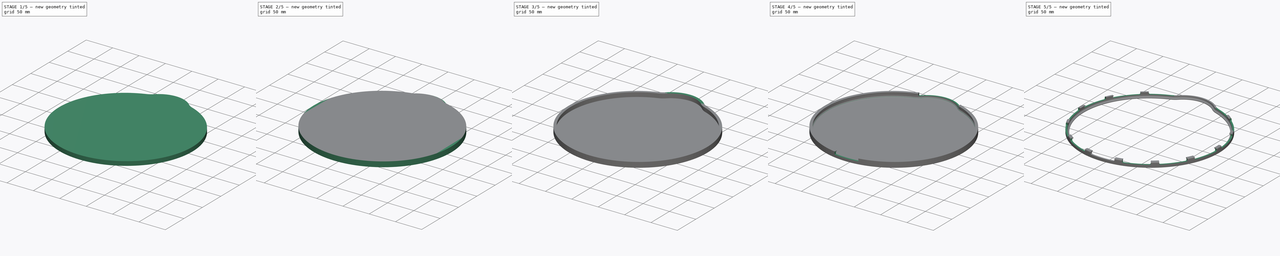
[diagram: build sequence overview — one tinted view per stage of 5, left to right]
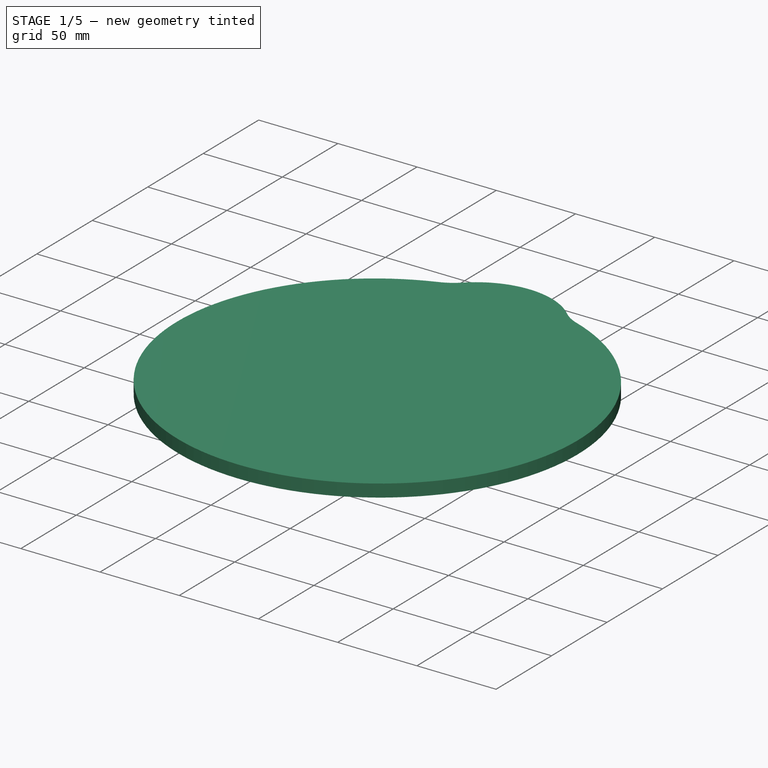
[diagram: stage 1 of 5 — iso view after this stage's code; geometry added in this stage tinted green]
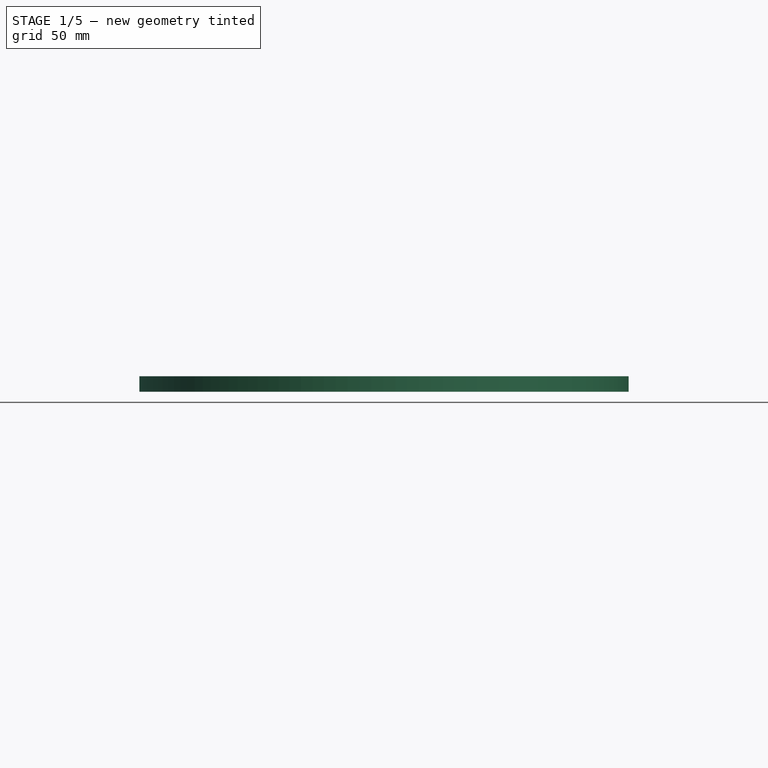
[diagram: stage 1 of 5 — front view after this stage's code; geometry added in this stage tinted green]
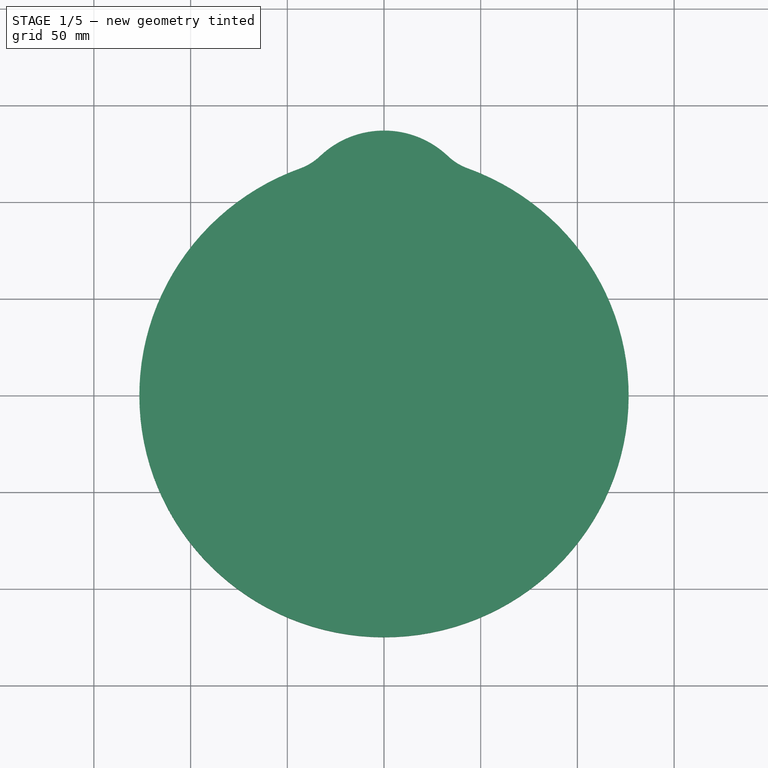
[diagram: stage 1 of 5 — top view after this stage's code; geometry added in this stage tinted green]
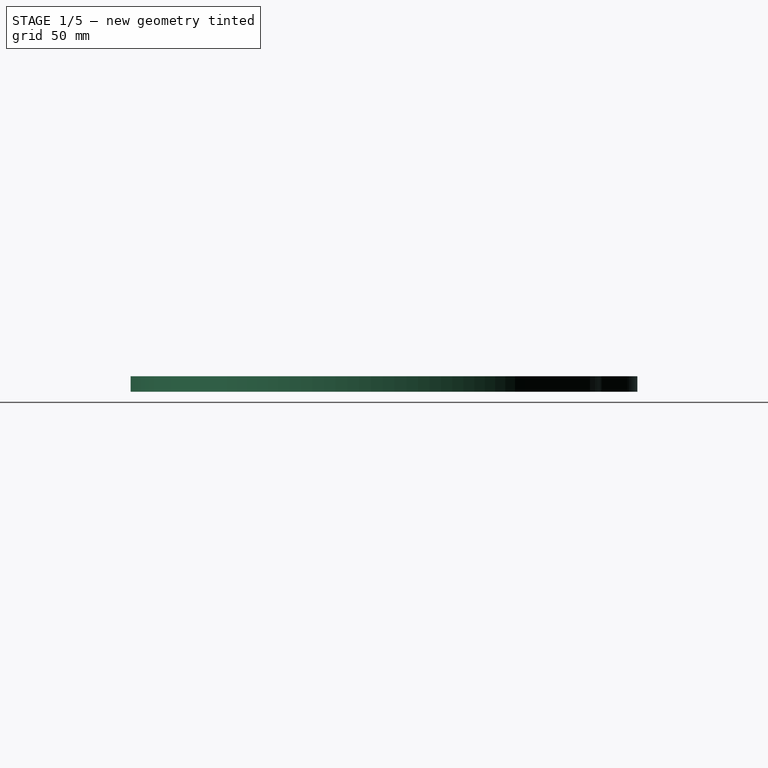
[diagram: stage 1 of 5 — right view after this stage's code; geometry added in this stage tinted green]
FCSTD DOCUMENT  (FreeCAD 0.18R4 (GitTag))
Label: ikea_cover
License: All rights reserved
LicenseURL: http://en.wikipedia.org/wiki/All_rights_reserved
objects: Sketcher::SketchObject×8, PartDesign::Pad×6, PartDesign::Fillet×6, PartDesign::Body×3, PartDesign::Pocket×3, PartDesign::Boolean×1, PartDesign::PolarPattern×1
note: 37 computed .brp shape members not serialized (recipe doc carries the construction recipe); baked Part::Feature solids carry a one-line shape summary decoded from their .brp

FEATURE [PartDesign::Body] Body001  label="Bowl"
  Group = -> [Sketch003,Pad003,Sketch002,Pad002,Fillet001]
  Origin = -> Origin001
  Tip = -> Fillet001
FEATURE [Sketcher::SketchObject] Sketch004
  AttachmentOffset = pos=(0,0,2) rot=(0,0,1;0rad)
  MapMode = 5
  Placement = pos=(0,0,2) rot=(0,0,1;0rad)
  Support = -> [XY_Plane002]
  expr: Constraints[6] = 257 - 4
  expr: Constraints[7] = 254 - 4
  sketch-geometry (5):
    g0: Ellipse CenterX=0 CenterY=0 CenterZ=0 NormalX=0 NormalY=0 NormalZ=1 MajorRadius=126.5 MinorRadius=125 AngleXU=-3.14159
    g1: LineSegment [constr] StartX=-126.5 StartY=0 StartZ=0 EndX=126.5 EndY=0 EndZ=0
    g2: LineSegment [constr] StartX=0 StartY=-125 StartZ=0 EndX=0 EndY=125 EndZ=0
    g3: GeomPoint X=-19.4229 Y=0 Z=0
    g4: GeomPoint X=19.4229 Y=0 Z=0
  constraints (5):
    c: InternalAlignment(g1-g4 -> g0) x4
    c: Coincident(g0,g-1)
    c: PointOnObject(g3,g-1)
    c: DistanceX(g1,g1) = 253
    c: DistanceY(g2,g2) = 250
FEATURE [Sketcher::SketchObject] Sketch005
  AttachmentOffset = pos=(0,0,2) rot=(0,0,1;0rad)
  MapMode = 5
  Placement = pos=(0,0,2) rot=(0,0,1;0rad)
  Support = -> [XY_Plane002]
  expr: Constraints[9] = (270 * 3 - 254) / 4 - 2
  expr: Constraints[7] = 50 - 2
  sketch-geometry (3):
    g0: LineSegment StartX=-25 StartY=48.0244 StartZ=0 EndX=25 EndY=48.0244 EndZ=0
    g1: ArcOfCircle CenterX=0 CenterY=89 CenterZ=0 NormalX=0 NormalY=0 NormalZ=1 AngleXU=0 Radius=48 StartAngle=1.5708 EndAngle=4.16456
    g2: ArcOfCircle CenterX=0 CenterY=89 CenterZ=0 NormalX=0 NormalY=0 NormalZ=1 AngleXU=0 Radius=48 StartAngle=5.26022 EndAngle=7.85398
  constraints (10):
    c: Horizontal(g0)
    c: DistanceX(g0,g0) = 50
    c: PointOnObject(g1,g-2)
    c: Coincident(g1,g0)
    c: Coincident(g2,g1)
    c: Coincident(g2,g1)
    c: Coincident(g2,g0)
    c: Radius(g2) = 48
    c: PointOnObject(g1,g-2)
    c: DistanceY(g-1,g1) = 137
FEATURE [PartDesign::Pad] Pad004
  Length = 8
  Length2 = 100
  Profile = -> Sketch004
  Type = 0
FEATURE [PartDesign::Pad] Pad005
  BaseFeature = -> Pad004
  Length = 8
  Length2 = 100
  Profile = -> Sketch005
  Refine = true
  Type = 0
FEATURE [PartDesign::Fillet] Fillet002
  Base = -> Pad005 [Edge5,Edge2]
  BaseFeature = -> Pad005
  Radius = 30
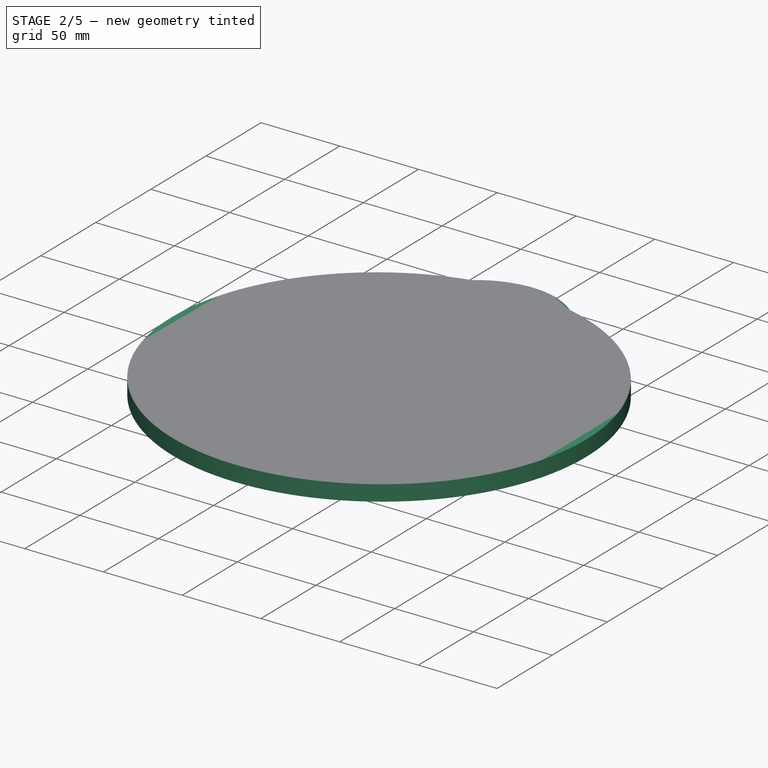
[diagram: stage 2 of 5 — iso view after this stage's code; geometry added in this stage tinted green]
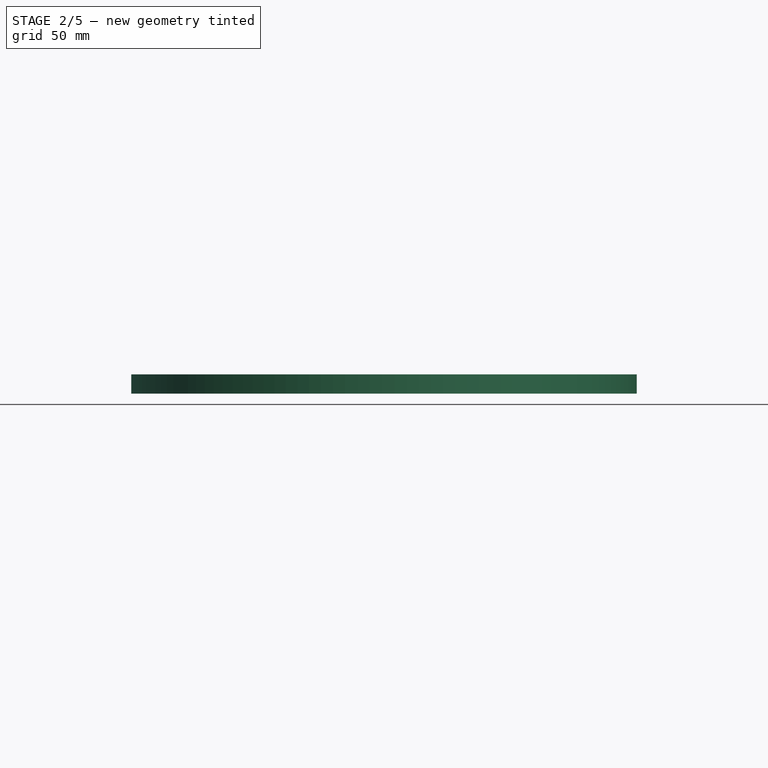
[diagram: stage 2 of 5 — front view after this stage's code; geometry added in this stage tinted green]
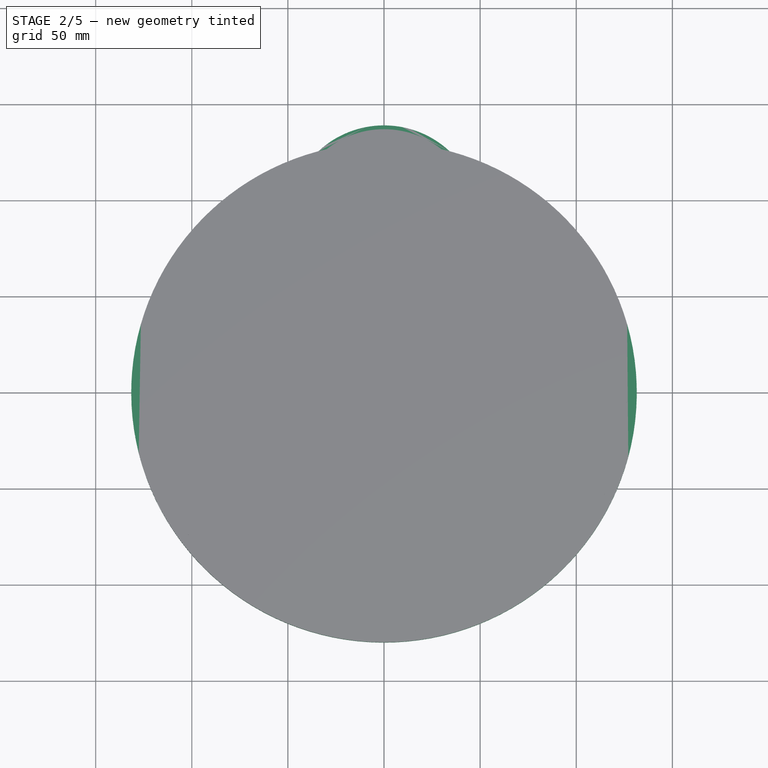
[diagram: stage 2 of 5 — top view after this stage's code; geometry added in this stage tinted green]
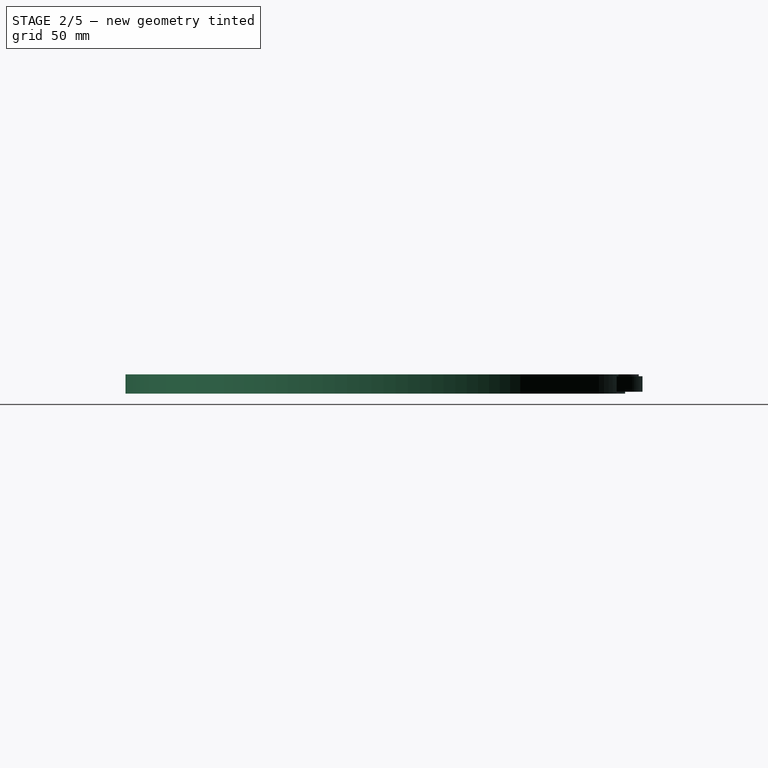
[diagram: stage 2 of 5 — right view after this stage's code; geometry added in this stage tinted green]
FEATURE [Sketcher::SketchObject] Sketch
  MapMode = 5
  Support = -> [XY_Plane]
  expr: Constraints[6] = 257 + 6
  expr: Constraints[7] = 254 + 6
  sketch-geometry (5):
    g0: Ellipse CenterX=0 CenterY=0 CenterZ=0 NormalX=0 NormalY=0 NormalZ=1 MajorRadius=131.5 MinorRadius=130 AngleXU=-3.14159
    g1: LineSegment [constr] StartX=-131.5 StartY=0 StartZ=0 EndX=131.5 EndY=0 EndZ=0
    g2: LineSegment [constr] StartX=0 StartY=-130 StartZ=0 EndX=0 EndY=130 EndZ=0
    g3: GeomPoint X=-19.8053 Y=0 Z=0
    g4: GeomPoint X=19.8053 Y=0 Z=0
  constraints (5):
    c: InternalAlignment(g1-g4 -> g0) x4
    c: Coincident(g0,g-1)
    c: PointOnObject(g3,g-1)
    c: DistanceX(g1,g1) = 263
    c: DistanceY(g2,g2) = 260
FEATURE [PartDesign::Pad] Pad
  Length = 10
  Length2 = 100
  Profile = -> Sketch
  Type = 0
FEATURE [Sketcher::SketchObject] Sketch002
  AttachmentOffset = pos=(0,0,1) rot=(0,0,1;0rad)
  MapMode = 5
  Placement = pos=(0,0,1) rot=(0,0,1;0rad)
  Support = -> [XY_Plane001]
  expr: Constraints[9] = (270 * 3 - 254) / 4
  expr: Constraints[7] = 50
  sketch-geometry (3):
    g0: LineSegment StartX=-25 StartY=45.6987 StartZ=0 EndX=25 EndY=45.6987 EndZ=0
    g1: ArcOfCircle CenterX=0 CenterY=89 CenterZ=0 NormalX=0 NormalY=0 NormalZ=1 AngleXU=0 Radius=50 StartAngle=1.5708 EndAngle=4.18879
    g2: ArcOfCircle CenterX=0 CenterY=89 CenterZ=0 NormalX=0 NormalY=0 NormalZ=1 AngleXU=0 Radius=50 StartAngle=5.23599 EndAngle=7.85398
  constraints (10):
    c: Horizontal(g0)
    c: DistanceX(g0,g0) = 50
    c: PointOnObject(g1,g-2)
    c: Coincident(g1,g0)
    c: Coincident(g2,g1)
    c: Coincident(g2,g1)
    c: Coincident(g2,g0)
    c: Radius(g2) = 50
    c: PointOnObject(g1,g-2)
    c: DistanceY(g-1,g1) = 139
FEATURE [Sketcher::SketchObject] Sketch003
  AttachmentOffset = pos=(0,0,1) rot=(0,0,1;0rad)
  MapMode = 5
  Placement = pos=(0,0,1) rot=(0,0,1;0rad)
  Support = -> [XY_Plane001]
  expr: Constraints[6] = 257
  expr: Constraints[7] = 254
  sketch-geometry (5):
    g0: Ellipse CenterX=0 CenterY=0 CenterZ=0 NormalX=0 NormalY=0 NormalZ=1 MajorRadius=128.5 MinorRadius=127 AngleXU=-3.14159
    g1: LineSegment [constr] StartX=-128.5 StartY=0 StartZ=0 EndX=128.5 EndY=0 EndZ=0
    g2: LineSegment [constr] StartX=0 StartY=-127 StartZ=0 EndX=0 EndY=127 EndZ=0
    g3: GeomPoint X=-19.5768 Y=0 Z=0
    g4: GeomPoint X=19.5768 Y=0 Z=0
  constraints (5):
    c: InternalAlignment(g1-g4 -> g0) x4
    c: Coincident(g0,g-1)
    c: PointOnObject(g3,g-1)
    c: DistanceX(g1,g1) = 257
    c: DistanceY(g2,g2) = 254
FEATURE [PartDesign::Pad] Pad003
  Length = 8
  Length2 = 100
  Profile = -> Sketch003
  Type = 0
FEATURE [PartDesign::Pad] Pad002
  BaseFeature = -> Pad003
  Length = 8
  Length2 = 100
  Profile = -> Sketch002
  Refine = true
  Type = 0
FEATURE [PartDesign::Fillet] Fillet001
  Base = -> Pad002 [Edge5,Edge2]
  BaseFeature = -> Pad002
  Radius = 30
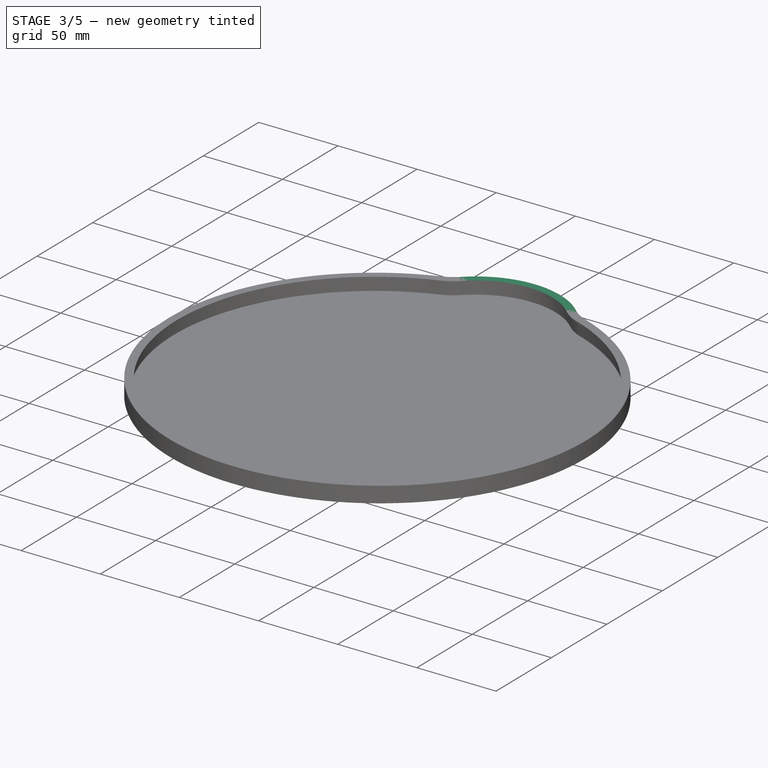
[diagram: stage 3 of 5 — iso view after this stage's code; geometry added in this stage tinted green]
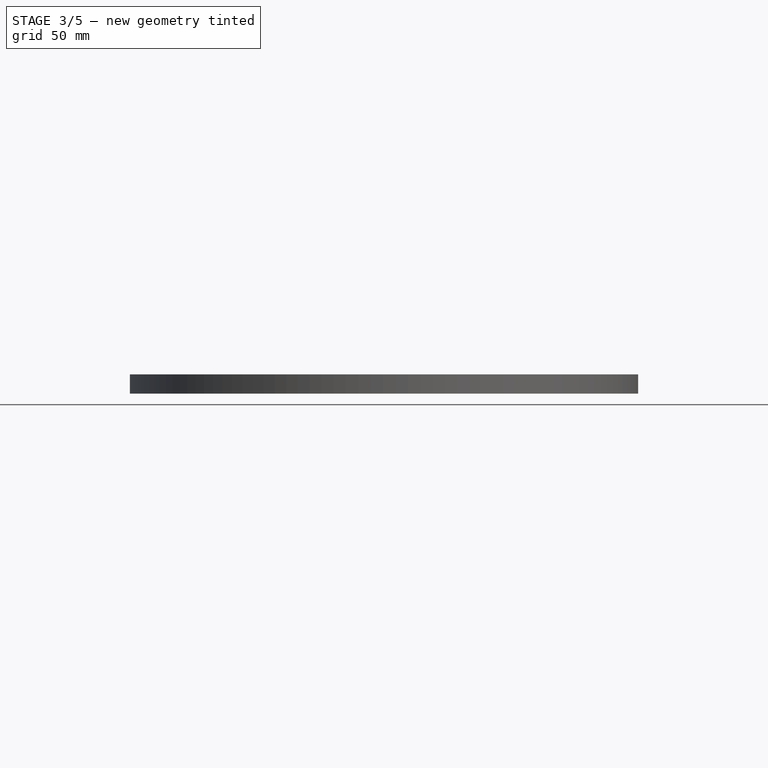
[diagram: stage 3 of 5 — front view after this stage's code; geometry added in this stage tinted green]
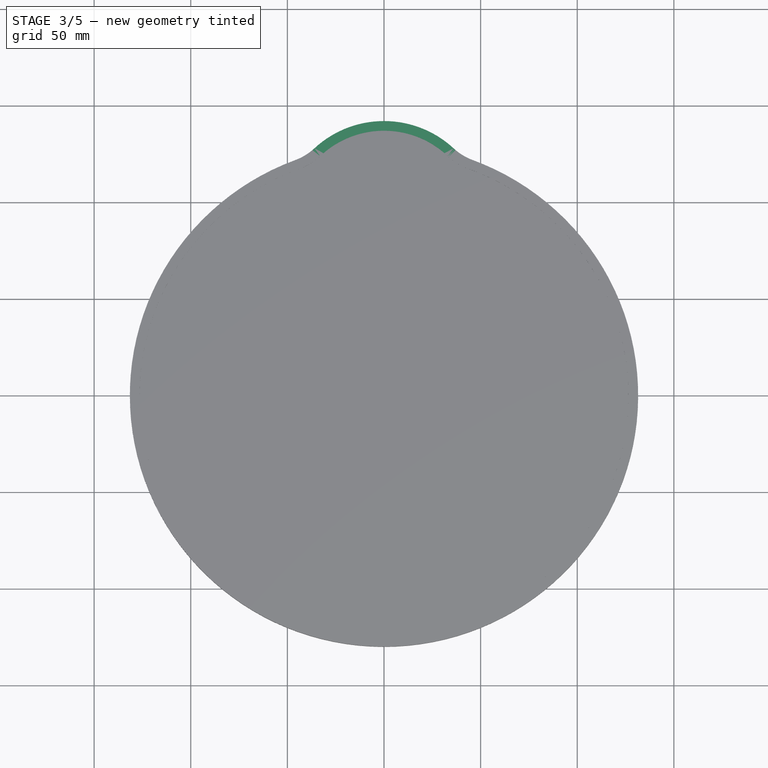
[diagram: stage 3 of 5 — top view after this stage's code; geometry added in this stage tinted green]
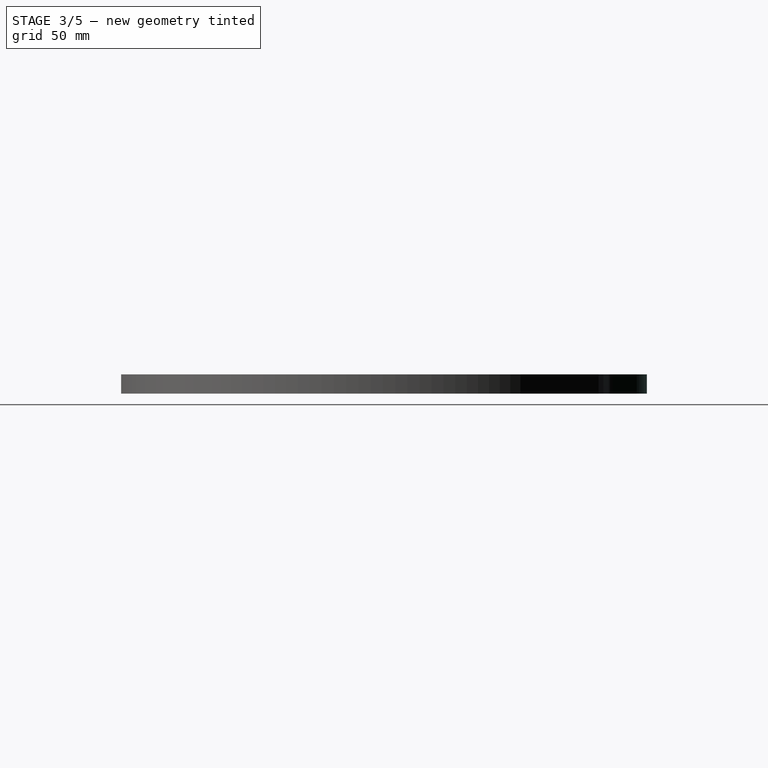
[diagram: stage 3 of 5 — right view after this stage's code; geometry added in this stage tinted green]
FEATURE [Sketcher::SketchObject] Sketch001
  MapMode = 5
  Support = -> [XY_Plane]
  expr: Constraints[9] = (270 * 3 - 254) / 4 + 3
  expr: Constraints[7] = 50 + 3
  sketch-geometry (3):
    g0: LineSegment StartX=-25 StartY=42.2667 StartZ=0 EndX=25 EndY=42.2667 EndZ=0
    g1: ArcOfCircle CenterX=0 CenterY=89 CenterZ=0 NormalX=0 NormalY=0 NormalZ=1 AngleXU=0 Radius=53 StartAngle=1.5708 EndAngle=4.22117
    g2: ArcOfCircle CenterX=0 CenterY=89 CenterZ=0 NormalX=0 NormalY=0 NormalZ=1 AngleXU=0 Radius=53 StartAngle=5.2036 EndAngle=7.85398
  constraints (10):
    c: Horizontal(g0)
    c: DistanceX(g0,g0) = 50
    c: PointOnObject(g1,g-2)
    c: Coincident(g1,g0)
    c: Coincident(g2,g1)
    c: Coincident(g2,g1)
    c: Coincident(g2,g0)
    c: Radius(g2) = 53
    c: PointOnObject(g1,g-2)
    c: DistanceY(g-1,g1) = 142
FEATURE [PartDesign::Pad] Pad001
  BaseFeature = -> Pad
  Length = 10
  Length2 = 100
  Profile = -> Sketch001
  Refine = true
  Type = 0
FEATURE [PartDesign::Fillet] Fillet
  Base = -> Pad001 [Edge5,Edge2]
  BaseFeature = -> Pad001
  Radius = 30
FEATURE [PartDesign::Body] Body002  label="Rim"
  Group = -> [Sketch004,Pad004,Sketch005,Pad005,Fillet002]
  Origin = -> Origin002
  Tip = -> Fillet002
FEATURE [PartDesign::Boolean] Boolean
  BaseFeature = -> Fillet
  Group = -> [Body001,Body002]
  Type = 1
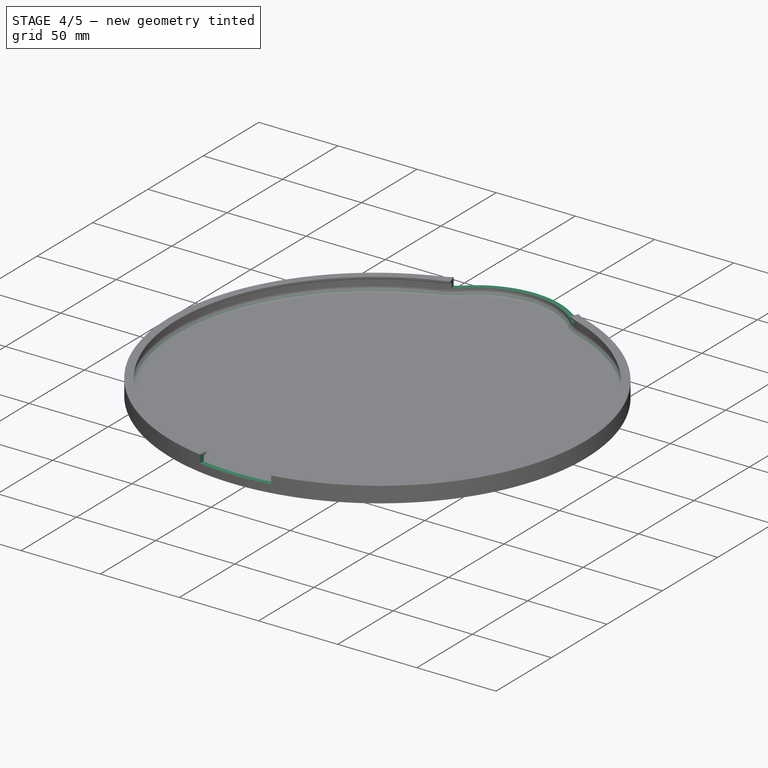
[diagram: stage 4 of 5 — iso view after this stage's code; geometry added in this stage tinted green]
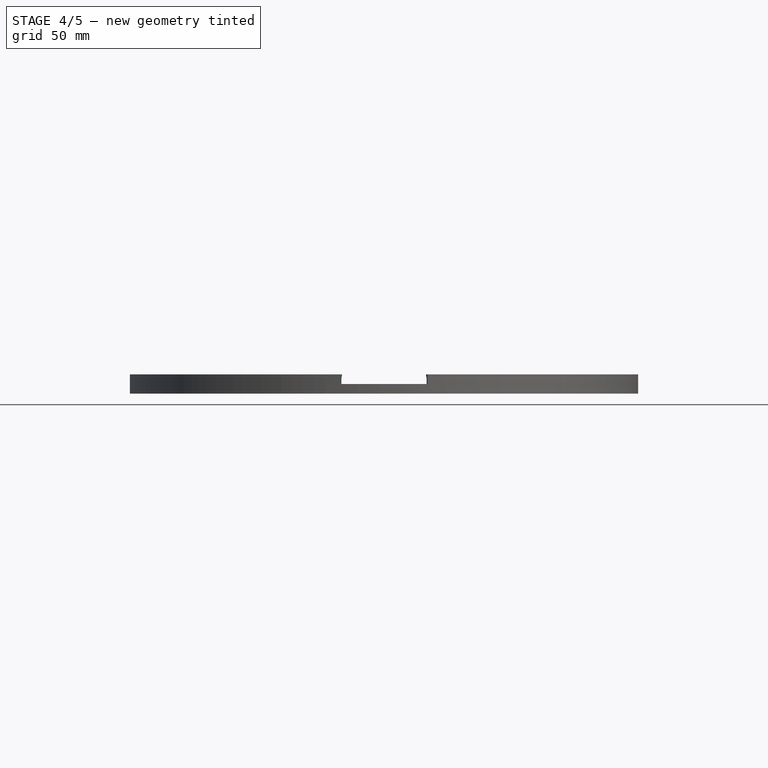
[diagram: stage 4 of 5 — front view after this stage's code; geometry added in this stage tinted green]
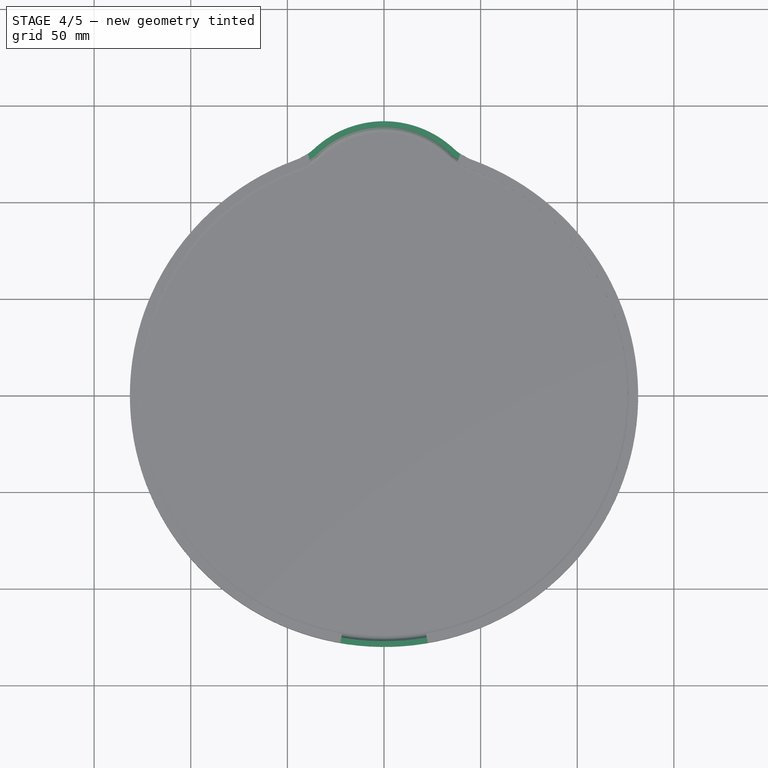
[diagram: stage 4 of 5 — top view after this stage's code; geometry added in this stage tinted green]
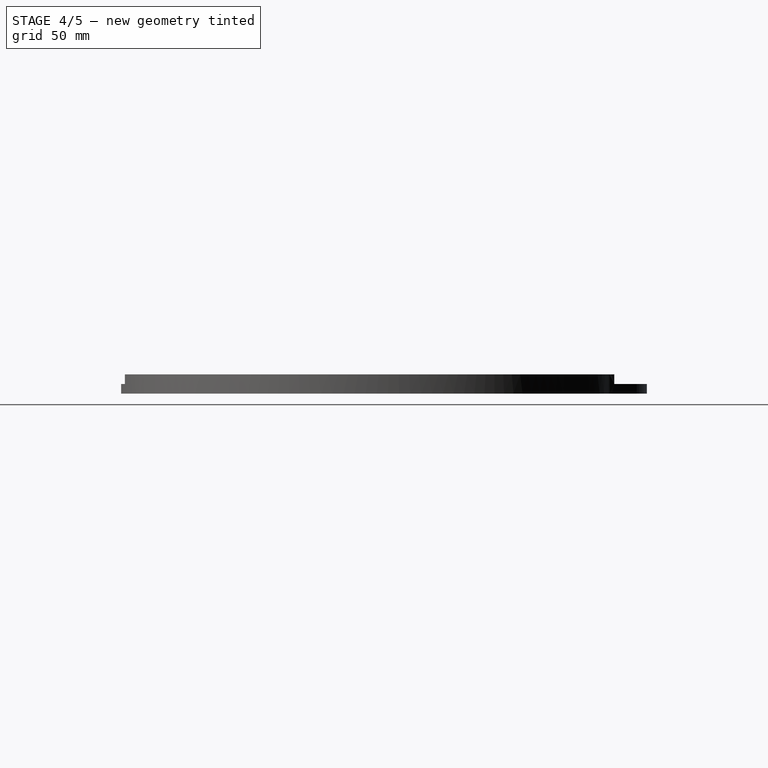
[diagram: stage 4 of 5 — right view after this stage's code; geometry added in this stage tinted green]
FEATURE [PartDesign::Fillet] Fillet003
  Base = -> Boolean [Edge50]
  BaseFeature = -> Boolean
  Radius = 3
FEATURE [PartDesign::Fillet] Fillet004
  Base = -> Fillet003 [Edge14]
  BaseFeature = -> Fillet003
  Radius = 1.75
FEATURE [Sketcher::SketchObject] Sketch006
  AttachmentOffset = pos=(0,0,10) rot=(0,0,1;0rad)
  MapMode = 5
  Placement = pos=(0,0,10) rot=(0,0,1;0rad)
  Support = -> [XY_Plane]
  sketch-geometry (4):
    g0: ArcOfCircle CenterX=0 CenterY=0 CenterZ=0 NormalX=0 NormalY=0 NormalZ=1 AngleXU=0 Radius=159.128 StartAngle=1.26536 EndAngle=1.87623
    g1: LineSegment StartX=-47.8508 StartY=151.763 StartZ=0 EndX=0 EndY=0 EndZ=0
    g2: LineSegment StartX=47.8508 StartY=151.763 StartZ=0 EndX=0 EndY=0 EndZ=0
    g3: LineSegment [constr] StartX=-47.8508 StartY=151.763 StartZ=0 EndX=47.8508 EndY=151.763 EndZ=0
  constraints (9):
    c: Coincident(g0,g-1)
    c: Coincident(g1,g0)
    c: Coincident(g1,g0)
    c: Coincident(g2,g0)
    c: Coincident(g2,g0)
    c: Coincident(g3,g0)
    c: Coincident(g3,g0)
    c: Horizontal(g3)
    c: Angle(g2,g1) = 0.610865
FEATURE [PartDesign::Pocket] Pocket
  BaseFeature = -> Fillet004
  Length = 5
  Length2 = 100
  Profile = -> Sketch006
  Type = 0
FEATURE [Sketcher::SketchObject] Sketch007
  AttachmentOffset = pos=(0,0,10) rot=(0,0,1;0rad)
  MapMode = 5
  Placement = pos=(0,0,10) rot=(0,0,1;0rad)
  Support = -> [XY_Plane]
  sketch-geometry (4):
    g0: ArcOfCircle CenterX=0 CenterY=0 CenterZ=0 NormalX=0 NormalY=0 NormalZ=1 AngleXU=0 Radius=181.561 StartAngle=4.53786 EndAngle=4.88692
    g1: LineSegment StartX=-31.5278 StartY=-178.803 StartZ=0 EndX=0 EndY=0 EndZ=0
    g2: LineSegment StartX=0 StartY=0 StartZ=0 EndX=31.5278 EndY=-178.803 EndZ=0
    g3: LineSegment [constr] StartX=-31.5278 StartY=-178.803 StartZ=0 EndX=31.5278 EndY=-178.803 EndZ=0
  constraints (9):
    c: Coincident(g0,g-1)
    c: Coincident(g1,g0)
    c: Coincident(g1,g0)
    c: Coincident(g2,g0)
    c: Coincident(g2,g0)
    c: Coincident(g3,g0)
    c: Coincident(g3,g0)
    c: Horizontal(g3)
    c: Angle(g1,g2) = 0.349066
FEATURE [PartDesign::Pocket] Pocket001
  BaseFeature = -> Pocket
  Length = 5
  Length2 = 100
  Profile = -> Sketch007
  Type = 0
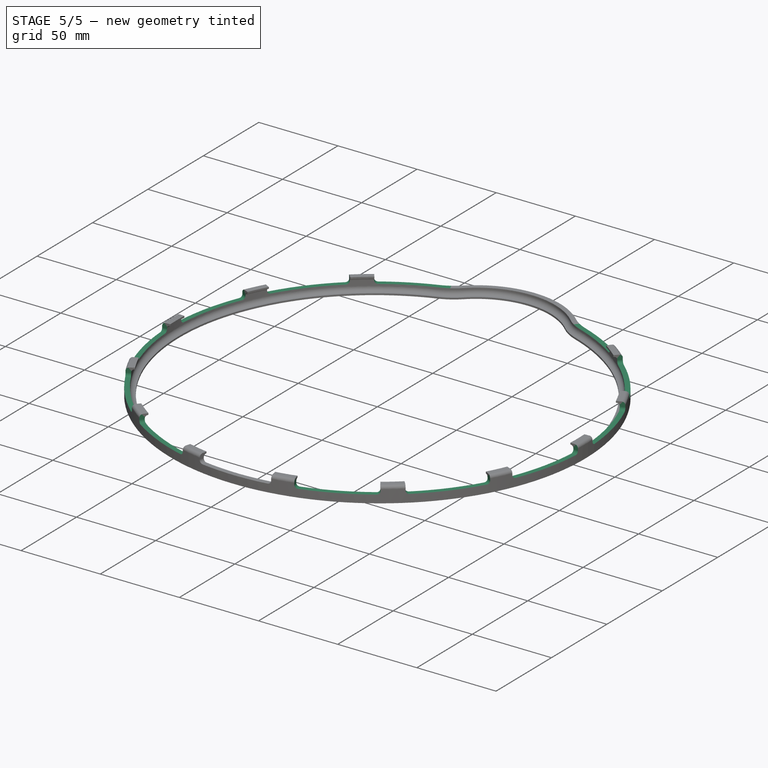
[diagram: stage 5 of 5 — iso view after this stage's code; geometry added in this stage tinted green]
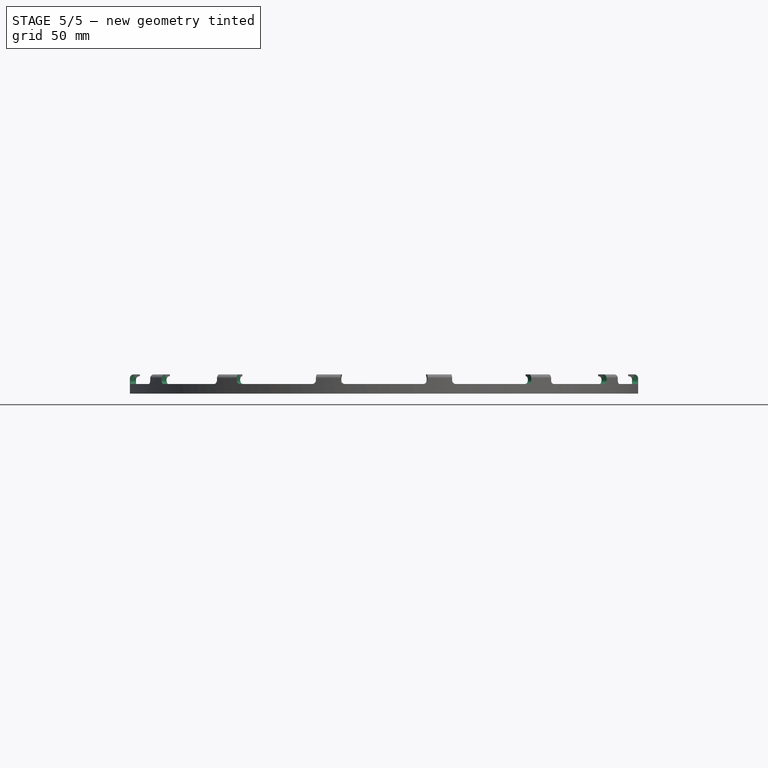
[diagram: stage 5 of 5 — front view after this stage's code; geometry added in this stage tinted green]
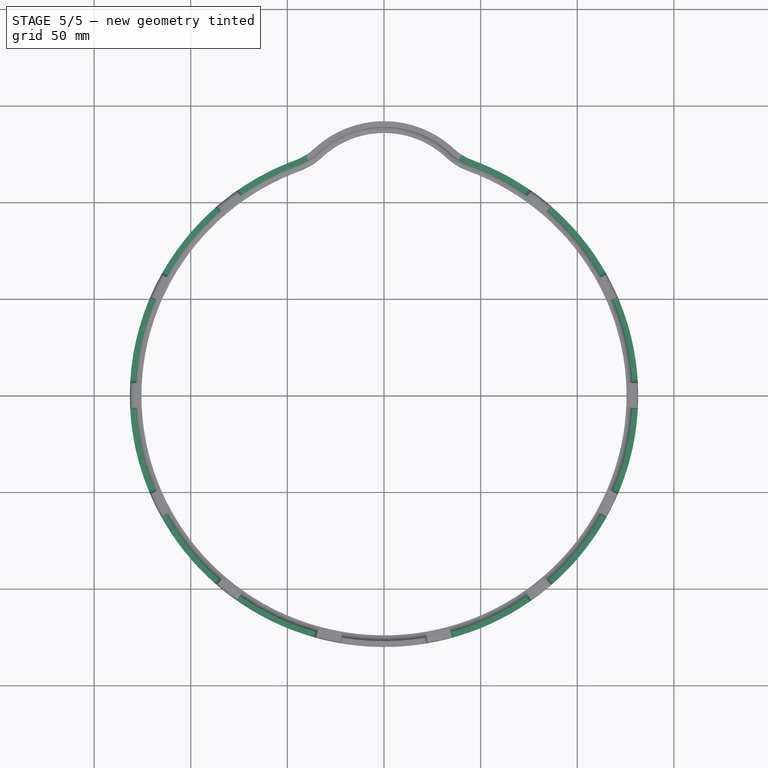
[diagram: stage 5 of 5 — top view after this stage's code; geometry added in this stage tinted green]
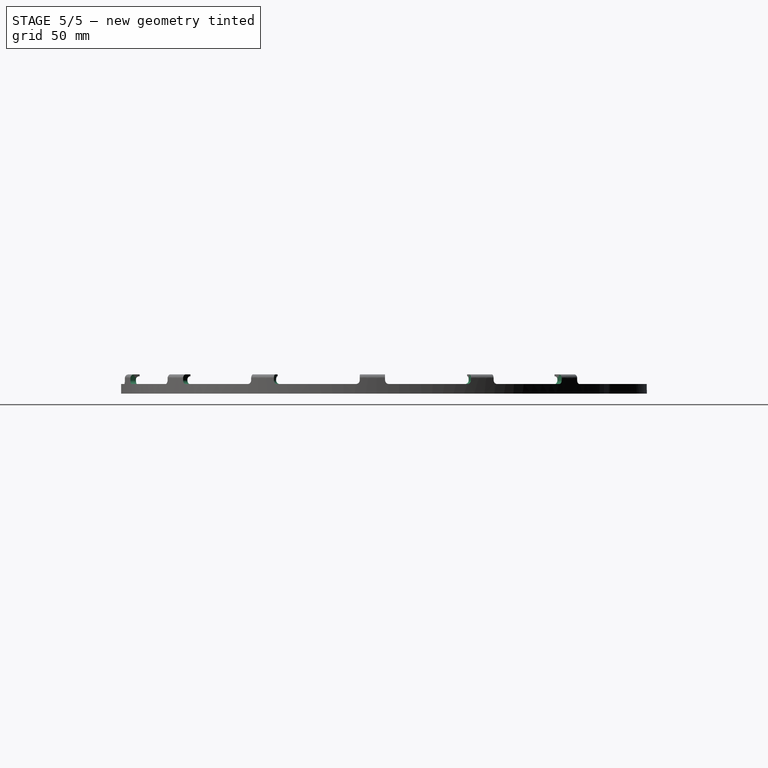
[diagram: stage 5 of 5 — right view after this stage's code; geometry added in this stage tinted green]
FEATURE [PartDesign::PolarPattern] PolarPattern
  Angle = 360
  Axis = -> Z_Axis
  BaseFeature = -> Pocket001
  Occurrences = 14
  Originals = -> [Pocket001]
FEATURE [PartDesign::Fillet] Fillet005
  Base = -> PolarPattern [Edge271,Edge86,Edge270,Edge72,Edge265,Edge169,Edge293,Edge155,Edge292,Edge141,Edge291,Edge127,Edge290,Edge253,Edge300,Edge239,Edge299,Edge225,Edge298,Edge211,Edge297,Edge197,Edge296,Edge181,Edge97,Edge83,Edge69,Edge166,Edge152,Edge138,Edge123,Edge250,Edge236,Edge222,Edge208,Edge194]
  BaseFeature = -> PolarPattern
  Radius = 2
FEATURE [PartDesign::Pocket] Pocket002
  BaseFeature = -> Fillet005
  Length = 5
  Length2 = 100
  Profile = -> Fillet005 [Face87]
  Type = 0
FEATURE [PartDesign::Body] Body  label="Base"
  Group = -> [Sketch,Pad,Sketch001,Pad001,Fillet,Boolean,Fillet003,Fillet004,Sketch006,Pocket,Sketch007,Pocket001,PolarPattern,Fillet005,Pocket002]
  Origin = -> Origin
  Tip = -> Pocket002
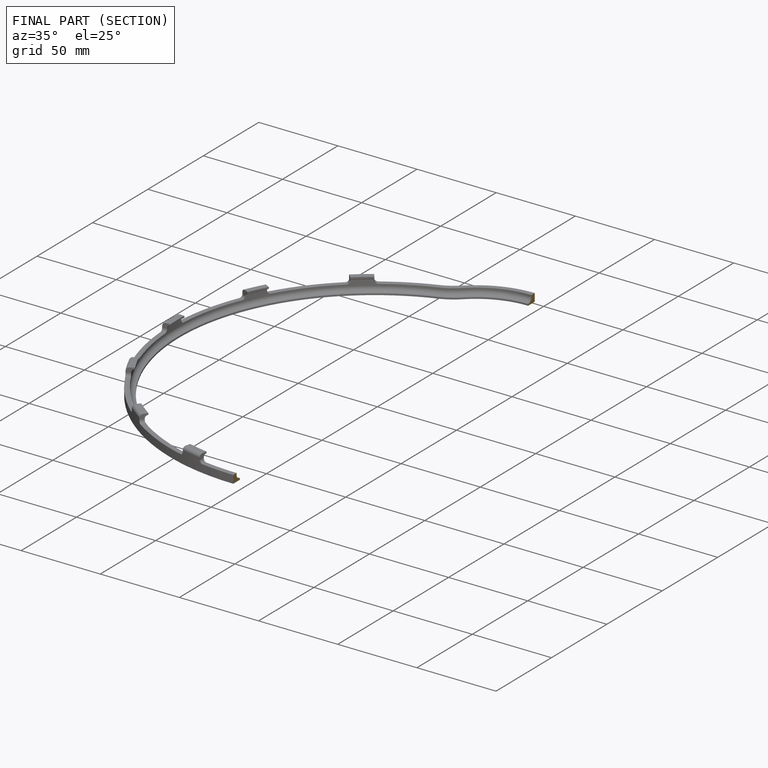
[diagram: finished part — half-section view (interior)]
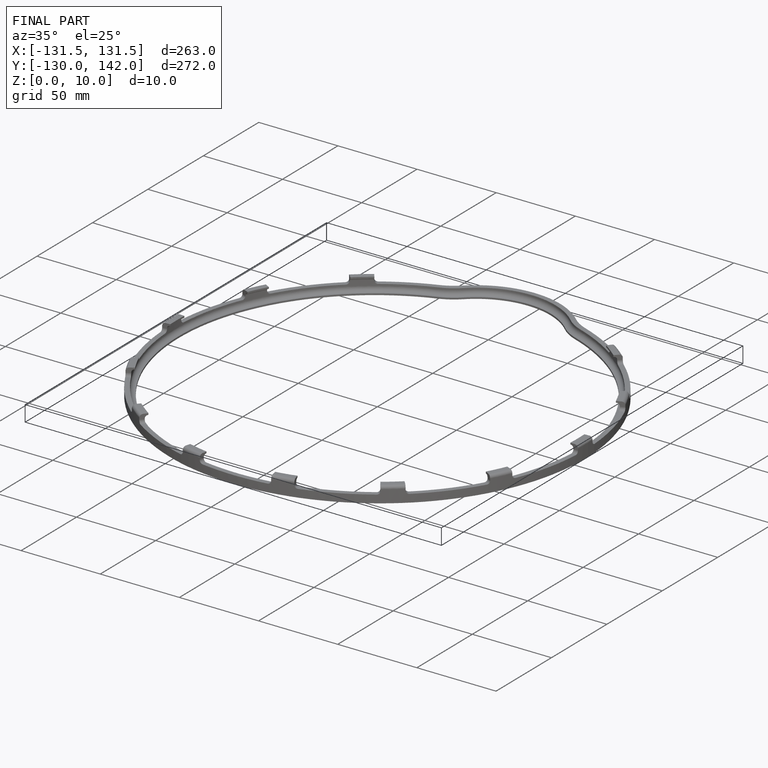
[diagram: finished part — iso view with bounding-box wireframe]
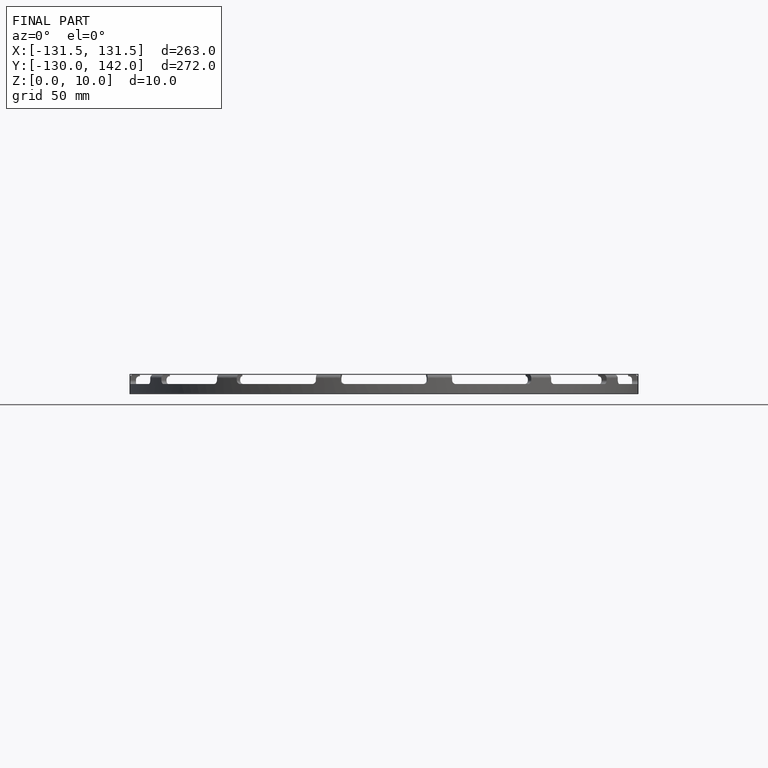
[diagram: finished part — front view with bounding-box wireframe]
